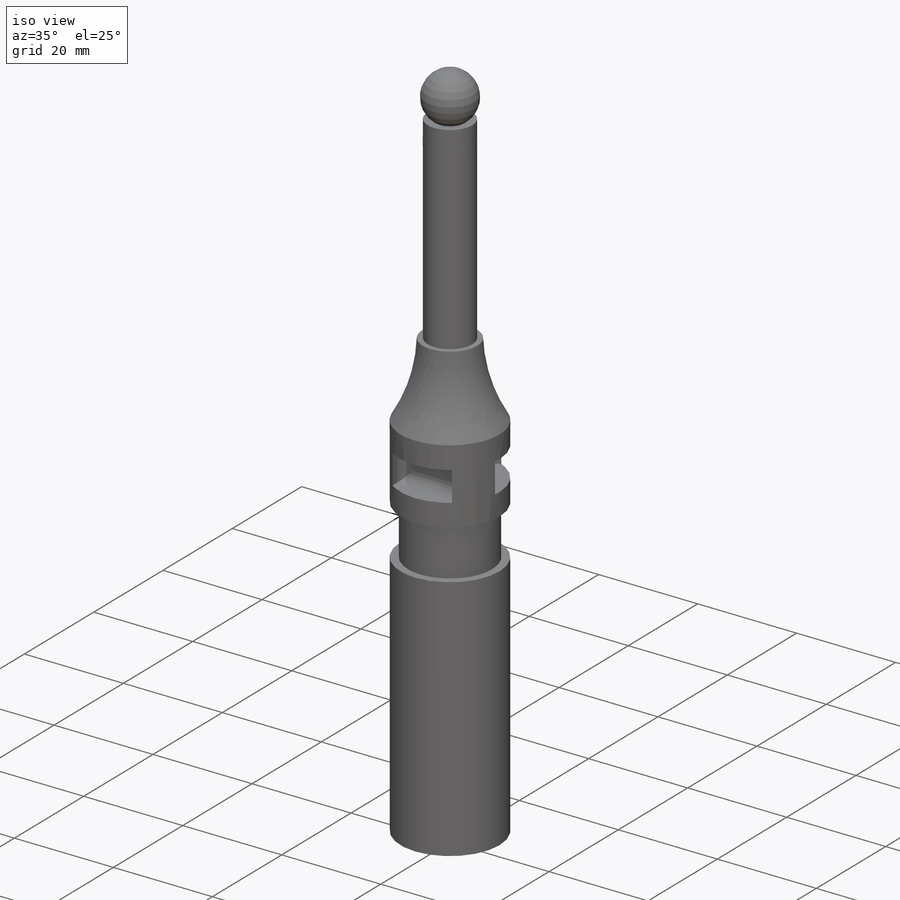
[diagram: iso view]
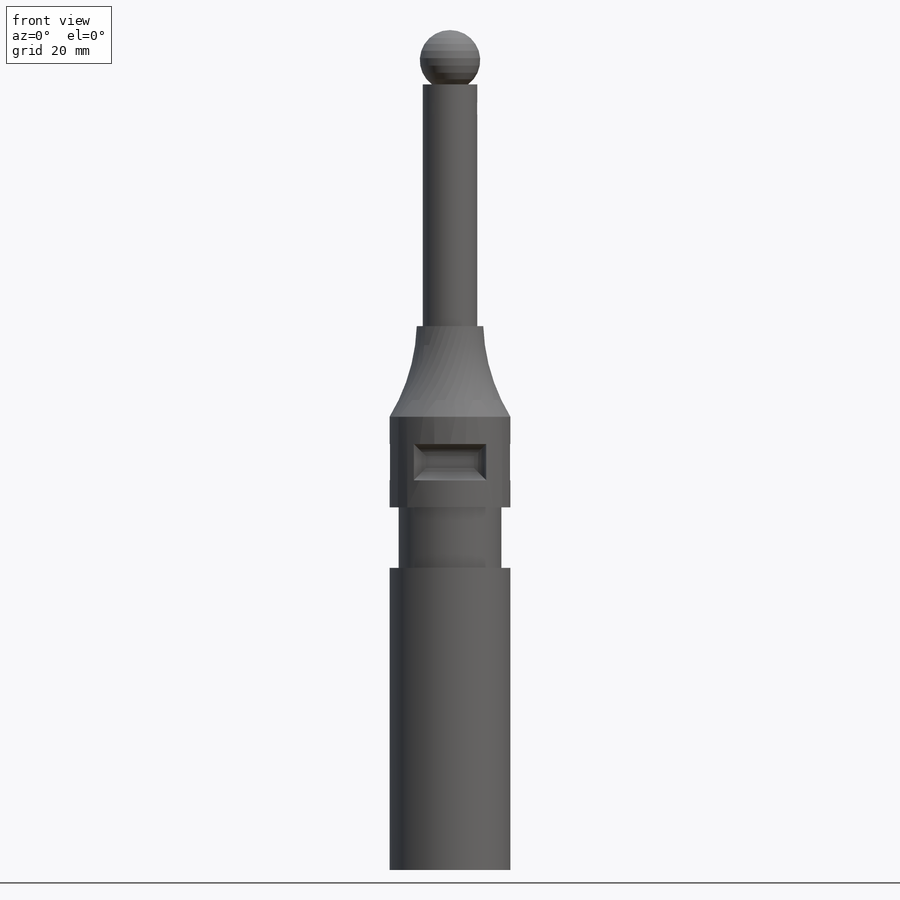
[diagram: front view]
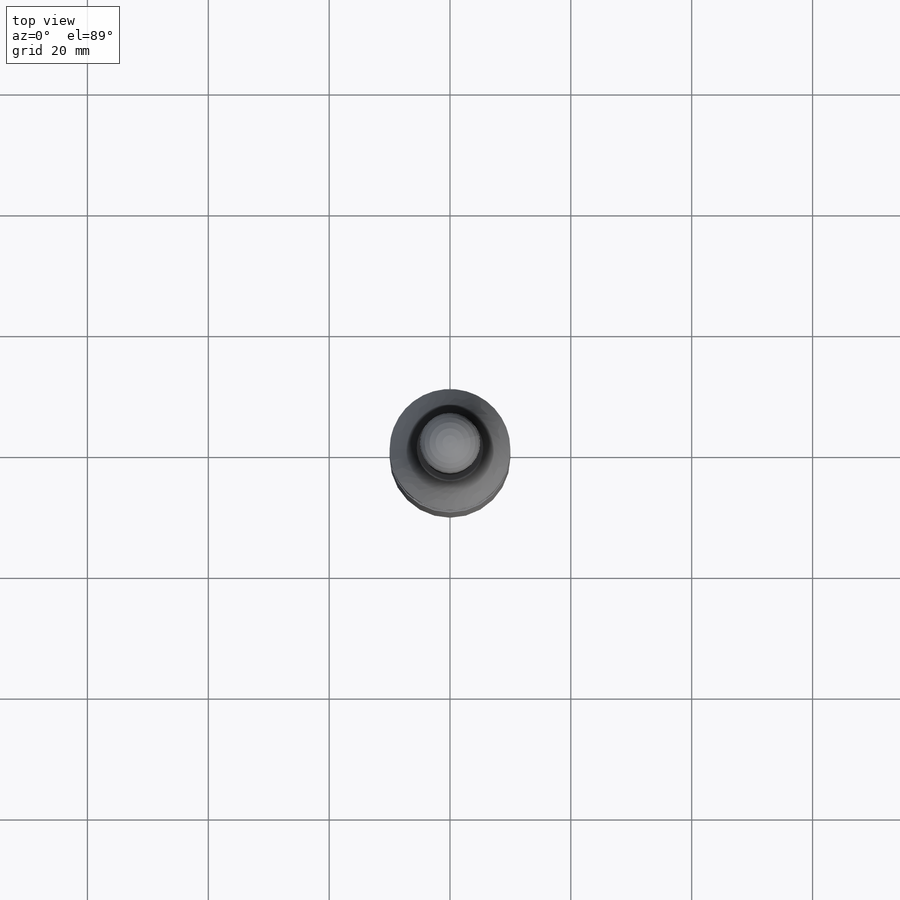
[diagram: top view]
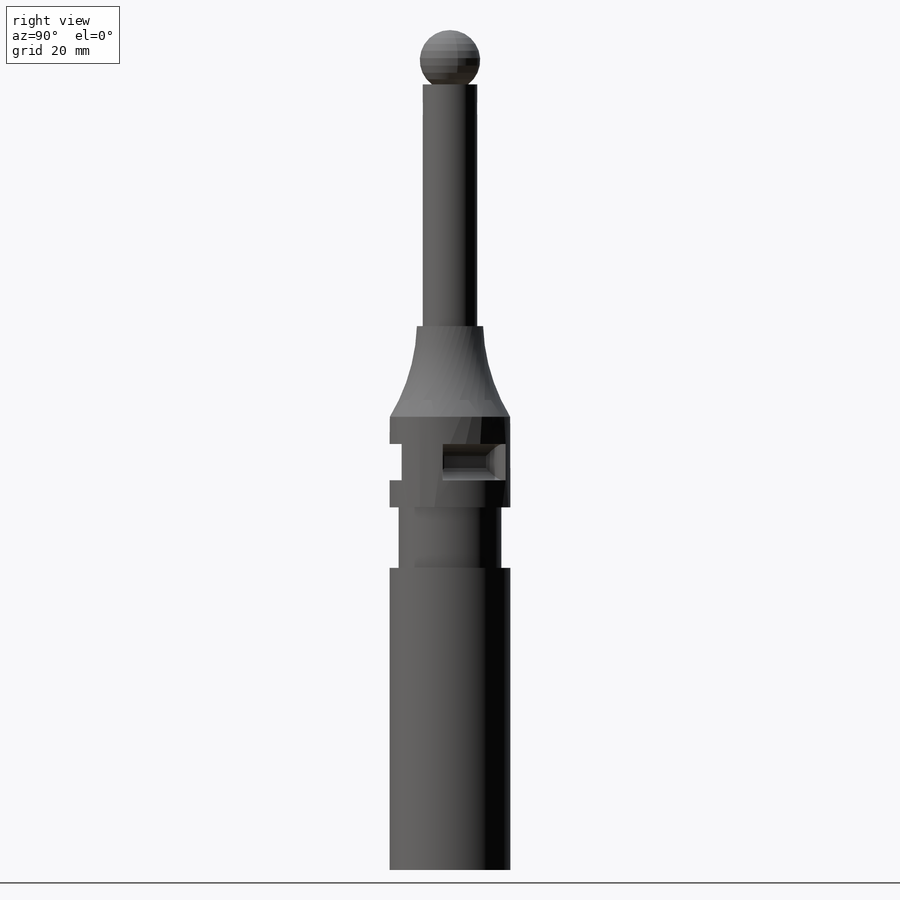
[diagram: right view]
SOLIDWORKS PART (.sldprt)
format: sldprt  version: not decoded by parser v0  size: 264,704 bytes
history: native  units: mm
features: plane x5, sketch x4, cut_extrude x2, material x1, revolve x1, fillet x1, pattern_circular x1, extrude x1 (+10 scaffold rows collapsed)
feature tree (26):
  scaffold x10  (default folders/planes/origin — collapsed)
  material  "材质 <未指定>"
  plane  "前视基准面"
  plane  "上视基准面"
  plane  "右视基准面"
  sketch  "草图1"  dims[c1.D1=5.0mm c1.D2=4.5mm c1.D3=40.0mm c1.D4=15.0mm c1.D5=15.0mm c1.D6=10.0mm c1.D7=50.0mm c1.D8=10.0mm c1.D9=1.0mm c1.D10=1.5mm c1.D11=9.0mm c2.D5=15.0mm]
  revolve  "旋转1"  Angle=360deg
  plane  "基准面1"  Offset=24mm
  sketch  "草图3"  dims[D1=12.0mm D2=6.0mm]
  cut_extrude  "切除-拉伸1"  Depth=19mm
  fillet  "圆角1"  Radius=2mm
  pattern_circular  "阵列(圆周)1"  Count=3 Angle=120deg
  plane  "基准面2"  Offset=3mm
  sketch  "草图6"  dims[D1=0.001mm]
  cut_extrude  "切除-拉伸5"  Depth=2mm
  sketch  "草图7"  dims[D1=~3.666035mm]
  extrude  "凸台-拉伸3"  Depth=2mm
decode coverage: 10 of 10 modeling features carry decoded parameters
note: ~ marks probable driven/reference dimensions
note: suppression state not decoded; provenance and decode notes live in map.json
